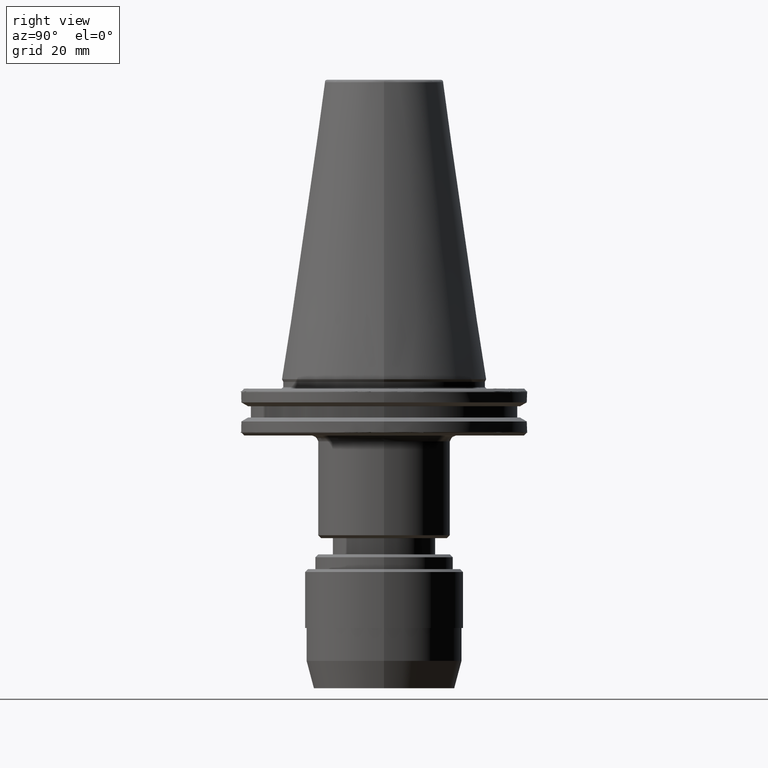
[diagram: clean part render]
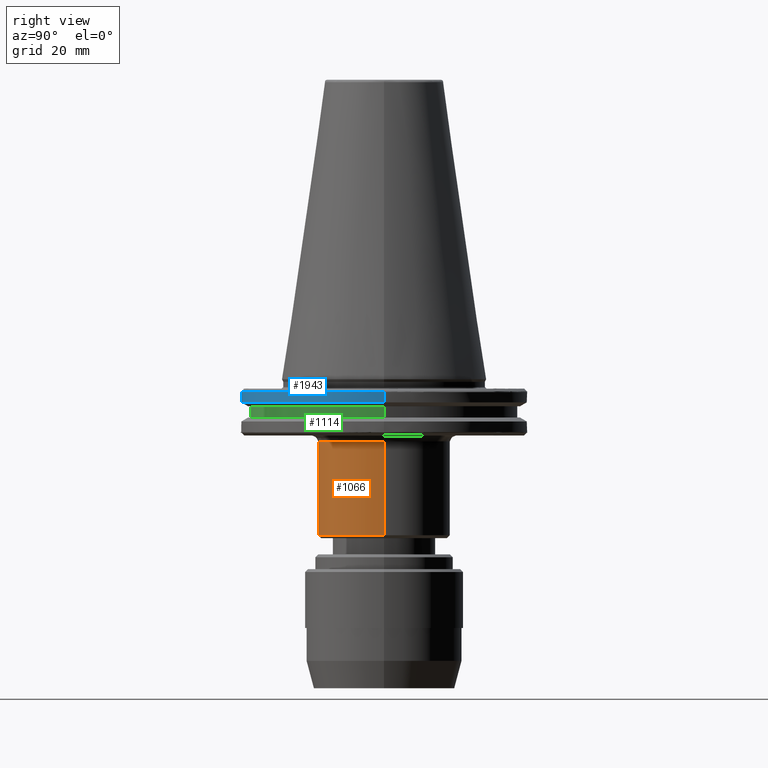
[diagram: same view with three faces highlighted in distinct colors, each labeled with its STEP entity id]
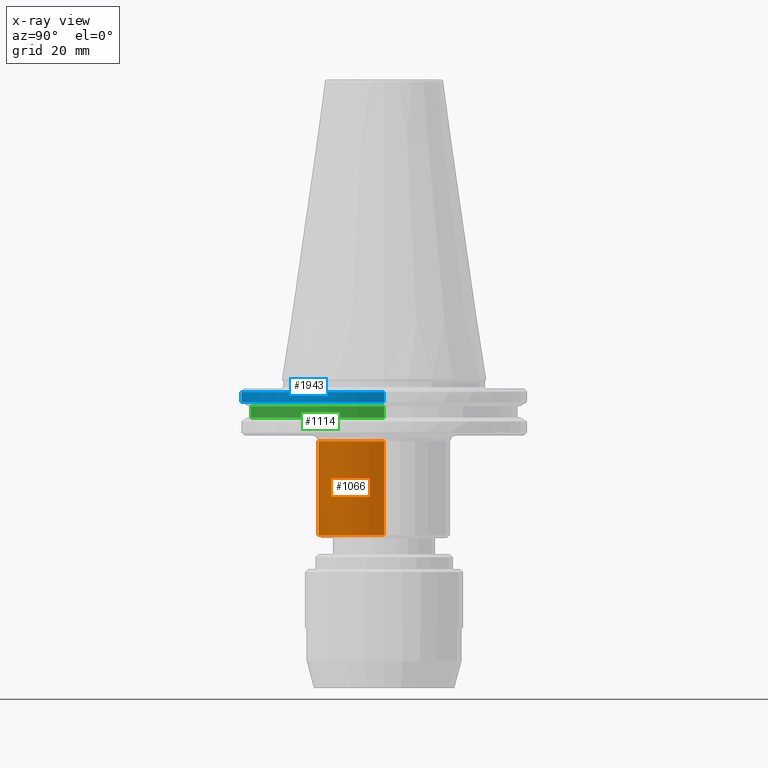
[diagram: x-ray of the same camera — body ghosted, the three highlighted faces saturated]
A machine part, right view with three faces highlighted in distinct colors.
The next image is the same camera in x-ray (body ghosted, the three faces saturated) — at least one of them is partly hidden behind the body in this view.
Their STEP definitions:

[orange] entity #1066 — the highlighted cylindrical surface (partial cylindrical patch) has radius 22.5 mm, axis along (0, 0, 1).
#30 = CARTESIAN_POINT ( 'NONE',  ( -22.50000000000000000, 2.755455298081544800E-015, -53.00000000000001400 ) ) ;
#41 = CARTESIAN_POINT ( 'NONE',  ( 22.50000000000000000, 0.0000000000000000000, 0.0000000000000000000 ) ) ;
#54 = VERTEX_POINT ( 'NONE', #255 ) ;
#142 = VERTEX_POINT ( 'NONE', #30 ) ;
#161 = CARTESIAN_POINT ( 'NONE',  ( -22.50000000000000000, 2.755455298081544800E-015, -21.10000000000000900 ) ) ;
#195 = EDGE_CURVE ( 'NONE', #54, #1180, #1391, .T. ) ;
#211 = ORIENTED_EDGE ( 'NONE', *, *, #2646, .T. ) ;
#255 = CARTESIAN_POINT ( 'NONE',  ( 22.50000000000000000, 0.0000000000000000000, -21.10000000000000900 ) ) ;
#296 = CARTESIAN_POINT ( 'NONE',  ( 0.0000000000000000000, 0.0000000000000000000, -21.10000000000000900 ) ) ;
#542 = ORIENTED_EDGE ( 'NONE', *, *, #195, .T. ) ;
#669 = ORIENTED_EDGE ( 'NONE', *, *, #1862, .F. ) ;
#957 = EDGE_LOOP ( 'NONE', ( #669, #2805, #211, #542 ) ) ;
#1066 = ADVANCED_FACE ( 'NONE', ( #2609 ), #2720, .T. ) ;
#1180 = VERTEX_POINT ( 'NONE', #161 ) ;
#1278 = DIRECTION ( 'NONE',  ( 0.0000000000000000000, 0.0000000000000000000, 1.000000000000000000 ) ) ;
#1306 = DIRECTION ( 'NONE',  ( 1.000000000000000000, 0.0000000000000000000, 0.0000000000000000000 ) ) ;
#1391 = CIRCLE ( 'NONE', #3144, 22.49999999999999600 ) ;
#1444 = CARTESIAN_POINT ( 'NONE',  ( 0.0000000000000000000, 0.0000000000000000000, 0.0000000000000000000 ) ) ;
#1549 = AXIS2_PLACEMENT_3D ( 'NONE', #1654, #3463, #1915 ) ;
#1654 = CARTESIAN_POINT ( 'NONE',  ( 0.0000000000000000000, 0.0000000000000000000, -53.00000000000001400 ) ) ;
#1677 = AXIS2_PLACEMENT_3D ( 'NONE', #1444, #1278, #1306 ) ;
#1862 = EDGE_CURVE ( 'NONE', #142, #1180, #3281, .T. ) ;
#1915 = DIRECTION ( 'NONE',  ( 1.000000000000000000, 0.0000000000000000000, 0.0000000000000000000 ) ) ;
#2074 = CARTESIAN_POINT ( 'NONE',  ( 22.50000000000000000, 0.0000000000000000000, -53.00000000000001400 ) ) ;
#2195 = DIRECTION ( 'NONE',  ( -1.000000000000000000, 0.0000000000000000000, 0.0000000000000000000 ) ) ;
#2520 = VECTOR ( 'NONE', #2595, 1000.000000000000000 ) ;
#2535 = DIRECTION ( 'NONE',  ( 0.0000000000000000000, 0.0000000000000000000, 1.000000000000000000 ) ) ;
#2563 = VERTEX_POINT ( 'NONE', #2074 ) ;
#2595 = DIRECTION ( 'NONE',  ( 0.0000000000000000000, 0.0000000000000000000, 1.000000000000000000 ) ) ;
#2601 = CARTESIAN_POINT ( 'NONE',  ( -22.50000000000000000, 2.755455298081544800E-015, 0.0000000000000000000 ) ) ;
#2609 = FACE_OUTER_BOUND ( 'NONE', #957, .T. ) ;
#2646 = EDGE_CURVE ( 'NONE', #2563, #54, #3001, .T. ) ;
#2678 = DIRECTION ( 'NONE',  ( 0.0000000000000000000, 0.0000000000000000000, -1.000000000000000000 ) ) ;
#2720 = CYLINDRICAL_SURFACE ( 'NONE', #1677, 22.50000000000000000 ) ;
#2805 = ORIENTED_EDGE ( 'NONE', *, *, #3190, .T. ) ;
#2947 = CIRCLE ( 'NONE', #1549, 22.50000000000000000 ) ;
#3001 = LINE ( 'NONE', #41, #2520 ) ;
#3144 = AXIS2_PLACEMENT_3D ( 'NONE', #296, #2678, #2195 ) ;
#3190 = EDGE_CURVE ( 'NONE', #142, #2563, #2947, .T. ) ;
#3273 = VECTOR ( 'NONE', #2535, 1000.000000000000000 ) ;
#3281 = LINE ( 'NONE', #2601, #3273 ) ;
#3463 = DIRECTION ( 'NONE',  ( 0.0000000000000000000, 0.0000000000000000000, 1.000000000000000000 ) ) ;

[blue] entity #1943 — the highlighted cylindrical surface (partial cylindrical patch) has radius 48.75 mm, axis along (0, 0, 1).
#68 = DIRECTION ( 'NONE',  ( 1.000000000000000000, 0.0000000000000000000, 0.0000000000000000000 ) ) ;
#72 = DIRECTION ( 'NONE',  ( -0.0000000000000000000, -0.0000000000000000000, 1.000000000000000000 ) ) ;
#76 = CARTESIAN_POINT ( 'NONE',  ( 0.0000000000000000000, 0.0000000000000000000, -4.365685424949236700 ) ) ;
#118 = CARTESIAN_POINT ( 'NONE',  ( -46.83796378645139000, -13.51915856623735300, -4.365685424949236700 ) ) ;
#128 = EDGE_LOOP ( 'NONE', ( #3446, #3103, #1922, #2726, #1936, #3481 ) ) ;
#151 = EDGE_CURVE ( 'NONE', #2202, #2644, #1376, .T. ) ;
#465 = AXIS2_PLACEMENT_3D ( 'NONE', #76, #72, #68 ) ;
#506 = AXIS2_PLACEMENT_3D ( 'NONE', #1691, #1694, #1698 ) ;
#654 = EDGE_CURVE ( 'NONE', #1241, #1091, #1818, .T. ) ;
#671 = CIRCLE ( 'NONE', #1596, 48.75000000000000000 ) ;
#742 = EDGE_CURVE ( 'NONE', #2202, #1885, #1853, .T. ) ;
#748 = CARTESIAN_POINT ( 'NONE',  ( -48.75000000000000000, 5.970153145843347100E-015, -7.852404735808352000 ) ) ;
#1050 = CARTESIAN_POINT ( 'NONE',  ( -48.75000000000000000, 5.970153145843347100E-015, 113.5216080541959500 ) ) ;
#1091 = VERTEX_POINT ( 'NONE', #1273 ) ;
#1241 = VERTEX_POINT ( 'NONE', #118 ) ;
#1264 = AXIS2_PLACEMENT_3D ( 'NONE', #1828, #1837, #1834 ) ;
#1273 = CARTESIAN_POINT ( 'NONE',  ( 46.87302845420869300, -13.39707817141269600, -4.365685424949236700 ) ) ;
#1310 = EDGE_CURVE ( 'NONE', #2644, #1241, #2854, .T. ) ;
#1337 = CARTESIAN_POINT ( 'NONE',  ( -48.75000000000000000, 5.970153145843347100E-015, -4.365685424949236700 ) ) ;
#1375 = VECTOR ( 'NONE', #1389, 1000.000000000000000 ) ;
#1376 = LINE ( 'NONE', #1050, #1375 ) ;
#1389 = DIRECTION ( 'NONE',  ( 0.0000000000000000000, 0.0000000000000000000, 1.000000000000000000 ) ) ;
#1407 = LINE ( 'NONE', #2541, #2066 ) ;
#1533 = CARTESIAN_POINT ( 'NONE',  ( 0.0000000000000000000, 0.0000000000000000000, -4.365685424949236700 ) ) ;
#1596 = AXIS2_PLACEMENT_3D ( 'NONE', #1533, #3349, #1806 ) ;
#1691 = CARTESIAN_POINT ( 'NONE',  ( 0.0000000000000000000, 0.0000000000000000000, -4.365685424949240300 ) ) ;
#1694 = DIRECTION ( 'NONE',  ( 0.0000000000000000000, 0.0000000000000000000, 1.000000000000000000 ) ) ;
#1698 = DIRECTION ( 'NONE',  ( 1.000000000000000000, 0.0000000000000000000, 0.0000000000000000000 ) ) ;
#1806 = DIRECTION ( 'NONE',  ( 1.000000000000000000, 0.0000000000000000000, 0.0000000000000000000 ) ) ;
#1818 = CIRCLE ( 'NONE', #506, 48.75000000000000000 ) ;
#1828 = CARTESIAN_POINT ( 'NONE',  ( 0.0000000000000000000, 0.0000000000000000000, -7.852404735808352000 ) ) ;
#1834 = DIRECTION ( 'NONE',  ( 1.000000000000000000, 0.0000000000000000000, 0.0000000000000000000 ) ) ;
#1837 = DIRECTION ( 'NONE',  ( 0.0000000000000000000, 0.0000000000000000000, 1.000000000000000000 ) ) ;
#1853 = CIRCLE ( 'NONE', #1264, 48.75000000000000000 ) ;
#1885 = VERTEX_POINT ( 'NONE', #2514 ) ;
#1922 = ORIENTED_EDGE ( 'NONE', *, *, #3264, .T. ) ;
#1936 = ORIENTED_EDGE ( 'NONE', *, *, #654, .F. ) ;
#1943 = ADVANCED_FACE ( 'NONE', ( #3312 ), #3374, .T. ) ;
#2066 = VECTOR ( 'NONE', #2285, 1000.000000000000000 ) ;
#2138 = CARTESIAN_POINT ( 'NONE',  ( 0.0000000000000000000, 0.0000000000000000000, 113.5216080541959500 ) ) ;
#2143 = DIRECTION ( 'NONE',  ( 1.000000000000000000, 0.0000000000000000000, 0.0000000000000000000 ) ) ;
#2164 = DIRECTION ( 'NONE',  ( 0.0000000000000000000, 0.0000000000000000000, 1.000000000000000000 ) ) ;
#2202 = VERTEX_POINT ( 'NONE', #748 ) ;
#2238 = AXIS2_PLACEMENT_3D ( 'NONE', #2138, #2164, #2143 ) ;
#2285 = DIRECTION ( 'NONE',  ( 0.0000000000000000000, 0.0000000000000000000, 1.000000000000000000 ) ) ;
#2514 = CARTESIAN_POINT ( 'NONE',  ( 48.75000000000000000, 0.0000000000000000000, -7.852404735808352000 ) ) ;
#2541 = CARTESIAN_POINT ( 'NONE',  ( 48.75000000000000000, 0.0000000000000000000, 113.5216080541959500 ) ) ;
#2621 = CARTESIAN_POINT ( 'NONE',  ( 48.75000000000000000, 0.0000000000000000000, -4.365685424949236700 ) ) ;
#2644 = VERTEX_POINT ( 'NONE', #1337 ) ;
#2669 = VERTEX_POINT ( 'NONE', #2621 ) ;
#2726 = ORIENTED_EDGE ( 'NONE', *, *, #3280, .F. ) ;
#2854 = CIRCLE ( 'NONE', #465, 48.75000000000000000 ) ;
#3103 = ORIENTED_EDGE ( 'NONE', *, *, #742, .T. ) ;
#3264 = EDGE_CURVE ( 'NONE', #1885, #2669, #1407, .T. ) ;
#3280 = EDGE_CURVE ( 'NONE', #1091, #2669, #671, .T. ) ;
#3312 = FACE_OUTER_BOUND ( 'NONE', #128, .T. ) ;
#3349 = DIRECTION ( 'NONE',  ( -0.0000000000000000000, -0.0000000000000000000, 1.000000000000000000 ) ) ;
#3374 = CYLINDRICAL_SURFACE ( 'NONE', #2238, 48.75000000000000000 ) ;
#3446 = ORIENTED_EDGE ( 'NONE', *, *, #151, .F. ) ;
#3481 = ORIENTED_EDGE ( 'NONE', *, *, #1310, .F. ) ;

[green] entity #1114 — the highlighted cylindrical surface (partial cylindrical patch) has radius 45.5 mm, axis along (0, 0, 1).
#5 = EDGE_LOOP ( 'NONE', ( #1369, #1912, #159, #1880 ) ) ;
#94 = VERTEX_POINT ( 'NONE', #775 ) ;
#159 = ORIENTED_EDGE ( 'NONE', *, *, #300, .T. ) ;
#166 = AXIS2_PLACEMENT_3D ( 'NONE', #2487, #2482, #2468 ) ;
#300 = EDGE_CURVE ( 'NONE', #94, #2332, #1392, .T. ) ;
#489 = CARTESIAN_POINT ( 'NONE',  ( 45.50000000000000000, 0.0000000000000000000, -9.199999999999999300 ) ) ;
#629 = DIRECTION ( 'NONE',  ( 1.000000000000000000, 0.0000000000000000000, 0.0000000000000000000 ) ) ;
#634 = DIRECTION ( 'NONE',  ( 0.0000000000000000000, 0.0000000000000000000, 1.000000000000000000 ) ) ;
#642 = CARTESIAN_POINT ( 'NONE',  ( 0.0000000000000000000, 0.0000000000000000000, -13.00000000000001100 ) ) ;
#718 = AXIS2_PLACEMENT_3D ( 'NONE', #642, #634, #629 ) ;
#765 = DIRECTION ( 'NONE',  ( 0.0000000000000000000, 0.0000000000000000000, 1.000000000000000000 ) ) ;
#775 = CARTESIAN_POINT ( 'NONE',  ( 45.50000000000000000, 0.0000000000000000000, -13.00000000000001100 ) ) ;
#797 = DIRECTION ( 'NONE',  ( 1.000000000000000000, 0.0000000000000000000, 0.0000000000000000000 ) ) ;
#804 = CARTESIAN_POINT ( 'NONE',  ( 0.0000000000000000000, 0.0000000000000000000, 113.5216080541959500 ) ) ;
#821 = VERTEX_POINT ( 'NONE', #2021 ) ;
#939 = CARTESIAN_POINT ( 'NONE',  ( -45.50000000000000000, 5.572142936120457100E-015, -13.00000000000001100 ) ) ;
#1114 = ADVANCED_FACE ( 'NONE', ( #2699 ), #2751, .T. ) ;
#1200 = CARTESIAN_POINT ( 'NONE',  ( -45.50000000000000000, 5.572142936120457100E-015, 113.5216080541959500 ) ) ;
#1369 = ORIENTED_EDGE ( 'NONE', *, *, #2554, .F. ) ;
#1392 = LINE ( 'NONE', #3470, #1511 ) ;
#1511 = VECTOR ( 'NONE', #2420, 1000.000000000000000 ) ;
#1880 = ORIENTED_EDGE ( 'NONE', *, *, #2866, .T. ) ;
#1912 = ORIENTED_EDGE ( 'NONE', *, *, #3005, .T. ) ;
#2021 = CARTESIAN_POINT ( 'NONE',  ( -45.50000000000000000, 5.572142936120457100E-015, -9.199999999999999300 ) ) ;
#2030 = CIRCLE ( 'NONE', #166, 45.50000000000000000 ) ;
#2157 = DIRECTION ( 'NONE',  ( 0.0000000000000000000, 0.0000000000000000000, 1.000000000000000000 ) ) ;
#2332 = VERTEX_POINT ( 'NONE', #489 ) ;
#2420 = DIRECTION ( 'NONE',  ( 0.0000000000000000000, 0.0000000000000000000, 1.000000000000000000 ) ) ;
#2465 = LINE ( 'NONE', #1200, #2478 ) ;
#2468 = DIRECTION ( 'NONE',  ( 1.000000000000000000, 0.0000000000000000000, 0.0000000000000000000 ) ) ;
#2478 = VECTOR ( 'NONE', #2157, 1000.000000000000000 ) ;
#2482 = DIRECTION ( 'NONE',  ( -0.0000000000000000000, -0.0000000000000000000, -1.000000000000000000 ) ) ;
#2487 = CARTESIAN_POINT ( 'NONE',  ( 0.0000000000000000000, 0.0000000000000000000, -9.199999999999999300 ) ) ;
#2554 = EDGE_CURVE ( 'NONE', #3306, #821, #2465, .T. ) ;
#2578 = CIRCLE ( 'NONE', #718, 45.50000000000000000 ) ;
#2699 = FACE_OUTER_BOUND ( 'NONE', #5, .T. ) ;
#2751 = CYLINDRICAL_SURFACE ( 'NONE', #3042, 45.50000000000000000 ) ;
#2866 = EDGE_CURVE ( 'NONE', #2332, #821, #2030, .T. ) ;
#3005 = EDGE_CURVE ( 'NONE', #3306, #94, #2578, .T. ) ;
#3042 = AXIS2_PLACEMENT_3D ( 'NONE', #804, #765, #797 ) ;
#3306 = VERTEX_POINT ( 'NONE', #939 ) ;
#3470 = CARTESIAN_POINT ( 'NONE',  ( 45.50000000000000000, 0.0000000000000000000, 113.5216080541959500 ) ) ;